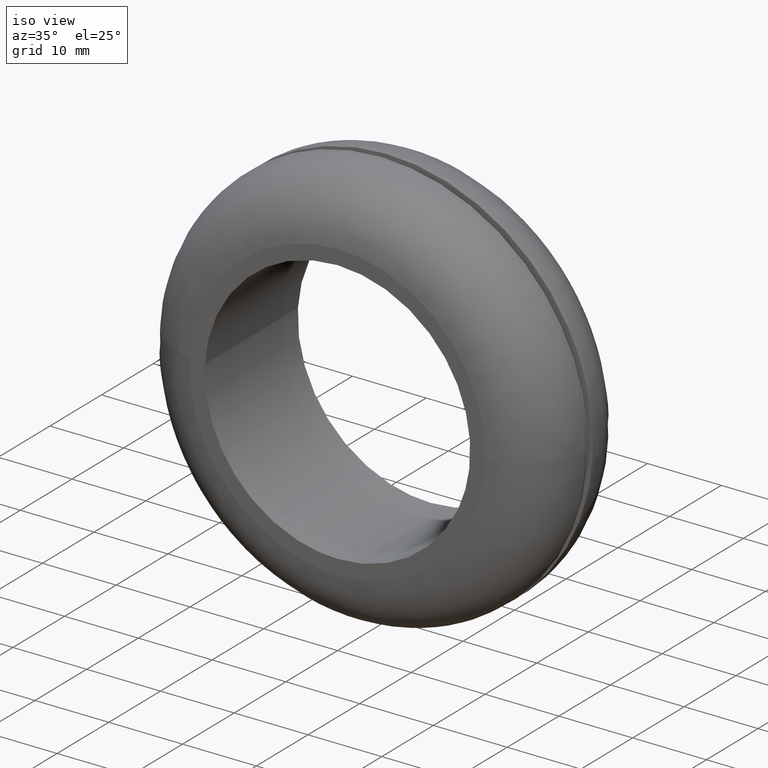
[diagram: clean part render]
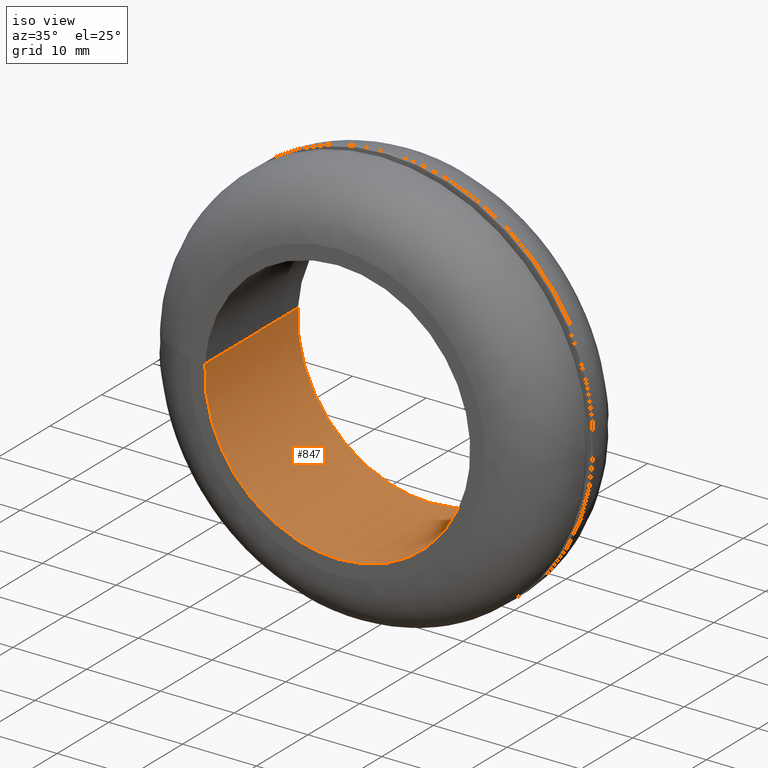
[diagram: same view with one face highlighted and labeled with its STEP entity id]
A machine part, iso view. The second image highlights one B-rep face of the part: STEP entity #847.
In plain terms, the highlighted face is a freeform B-spline surface patch.
Its self-contained STEP definition (entity closure, byte-faithful):
#684=CARTESIAN_POINT('',(17.874173591016429,18.000000000000089,-2.124598418028458));
#685=VERTEX_POINT('',#684);
#703=CARTESIAN_POINT('',(17.874173565500872,-5.770390E-015,-2.124598632691822));
#704=VERTEX_POINT('',#703);
#705=CARTESIAN_POINT('',(17.874173591016429,18.000000000000089,-2.124598418028458));
#706=CARTESIAN_POINT('',(17.874173565500872,-5.770390E-015,-2.124598632691822));
#707=QUASI_UNIFORM_CURVE('',1,(#705,#706),.UNSPECIFIED.,.F.,.U.);
#708=EDGE_CURVE('',#685,#704,#707,.T.);
#727=CARTESIAN_POINT('',(-17.966427366884538,-2.652419E-015,1.098857438522586));
#728=VERTEX_POINT('',#727);
#742=CARTESIAN_POINT('',(-17.966427379012210,17.999999999999918,1.098857240230970));
#743=VERTEX_POINT('',#742);
#744=CARTESIAN_POINT('',(-17.966427379012210,17.999999999999918,1.098857240230970));
#745=CARTESIAN_POINT('',(-17.966427366884538,-2.652419E-015,1.098857438522586));
#746=QUASI_UNIFORM_CURVE('',1,(#744,#745),.UNSPECIFIED.,.F.,.U.);
#747=EDGE_CURVE('',#743,#728,#746,.T.);
#765=CARTESIAN_POINT('',(-17.966426371593599,18.449999999999999,1.098873711627425));
#766=CARTESIAN_POINT('',(-19.065300083221029,18.450000000000010,-16.867552659966176));
#767=CARTESIAN_POINT('',(-1.098873711627426,18.449999999999999,-17.966426371593599));
#768=CARTESIAN_POINT('',(15.867782835111013,18.449999999999999,-19.004151541185493));
#769=CARTESIAN_POINT('',(17.874171474545992,18.450000000000003,-2.124616223821653));
#770=CARTESIAN_POINT('',(-17.966426371593599,-0.461250000000007,1.098873711627425));
#771=CARTESIAN_POINT('',(-19.065300083221029,-0.461250000000007,-16.867552659966176));
#772=CARTESIAN_POINT('',(-1.098873711627426,-0.461250000000007,-17.966426371593599));
#773=CARTESIAN_POINT('',(15.867782835111013,-0.461250000000007,-19.004151541185493));
#774=CARTESIAN_POINT('',(17.874171474545992,-0.461250000000007,-2.124616223821653));
#782=(BOUNDED_SURFACE()B_SPLINE_SURFACE(2,1,((#765,#770),(#766,#771),(#767,#772),(#768,#773),(#769,#774)),.UNSPECIFIED.,.F.,.F.,.U.)B_SPLINE_SURFACE_WITH_KNOTS((3,2,3),(2,2),(0.0,29.823376490862831,58.453817922091147),(0.0,18.911250000000010),.UNSPECIFIED.)GEOMETRIC_REPRESENTATION_ITEM()RATIONAL_B_SPLINE_SURFACE(((1.0,1.0),(0.707106781186548,0.707106781186548),(1.0,1.0),(0.718822509939086,0.718822509939086),(0.977505800795127,0.977505800795127)))REPRESENTATION_ITEM('')SURFACE());
#783=CARTESIAN_POINT('',(0.0,18.0,-18.0));
#784=VERTEX_POINT('',#783);
#785=CARTESIAN_POINT('',(0.0,18.0,-18.0));
#786=CARTESIAN_POINT('',(15.987157505225790,18.000000000000007,-18.000000000000007));
#787=CARTESIAN_POINT('',(17.874173591016433,18.000000000000089,-2.124598418028459));
#795=(BOUNDED_CURVE()B_SPLINE_CURVE(2,(#785,#786,#787),.UNSPECIFIED.,.F.,.U.)B_SPLINE_CURVE_WITH_KNOTS((3,3),(0.0,0.229562641872376),.UNSPECIFIED.)CURVE()GEOMETRIC_REPRESENTATION_ITEM()RATIONAL_B_SPLINE_CURVE((1.0,0.731050635610720,0.956027084174235))REPRESENTATION_ITEM(''));
#796=EDGE_CURVE('',#784,#685,#795,.T.);
#797=ORIENTED_EDGE('',*,*,#796,.F.);
#798=CARTESIAN_POINT('',(-17.966427379012213,17.999999999999918,1.098857240230970));
#799=CARTESIAN_POINT('',(-18.000000000000004,18.000000000000004,0.549941480584856));
#800=CARTESIAN_POINT('',(-18.0,18.0,-4.286122E-016));
#801=CARTESIAN_POINT('',(-18.000000000000007,18.000000000000007,-18.000000000000007));
#802=CARTESIAN_POINT('',(0.0,18.0,-18.0));
#810=(BOUNDED_CURVE()B_SPLINE_CURVE(2,(#798,#799,#800,#801,#802),.UNSPECIFIED.,.F.,.U.)B_SPLINE_CURVE_WITH_KNOTS((3,2,3),(0.739333120430740,0.750000000000000,1.0),.UNSPECIFIED.)CURVE()GEOMETRIC_REPRESENTATION_ITEM()RATIONAL_B_SPLINE_CURVE((0.976072380702086,0.987502973233056,1.0,0.707106781186547,1.0))REPRESENTATION_ITEM(''));
#811=EDGE_CURVE('',#743,#784,#810,.T.);
#812=ORIENTED_EDGE('',*,*,#811,.F.);
#813=ORIENTED_EDGE('',*,*,#747,.T.);
#814=CARTESIAN_POINT('',(0.0,-3.306437E-015,-18.0));
#815=VERTEX_POINT('',#814);
#816=CARTESIAN_POINT('',(-17.966427366884538,-2.652419E-015,1.098857438522586));
#817=CARTESIAN_POINT('',(-18.000000000000007,-3.306437E-015,0.549941580008645));
#818=CARTESIAN_POINT('',(-18.0,-3.306437E-015,-4.286122E-016));
#819=CARTESIAN_POINT('',(-18.000000000000007,-3.306437E-015,-18.000000000000007));
#820=CARTESIAN_POINT('',(0.0,-3.306437E-015,-18.0));
#828=(BOUNDED_CURVE()B_SPLINE_CURVE(2,(#816,#817,#818,#819,#820),.UNSPECIFIED.,.F.,.U.)B_SPLINE_CURVE_WITH_KNOTS((3,2,3),(0.739333118526377,0.750000000000000,1.0),.UNSPECIFIED.)CURVE()GEOMETRIC_REPRESENTATION_ITEM()RATIONAL_B_SPLINE_CURVE((0.976072376620669,0.987502971001956,1.0,0.707106781186547,1.0))REPRESENTATION_ITEM(''));
#829=EDGE_CURVE('',#728,#815,#828,.T.);
#830=ORIENTED_EDGE('',*,*,#829,.T.);
#831=CARTESIAN_POINT('',(0.0,-3.306437E-015,-18.0));
#832=CARTESIAN_POINT('',(15.987157311873327,-3.306437E-015,-17.999999999999996));
#833=CARTESIAN_POINT('',(17.874173565500875,-5.770390E-015,-2.124598632691822));
#841=(BOUNDED_CURVE()B_SPLINE_CURVE(2,(#831,#832,#833),.UNSPECIFIED.,.F.,.U.)B_SPLINE_CURVE_WITH_KNOTS((3,3),(0.0,0.229562639842698),.UNSPECIFIED.)CURVE()GEOMETRIC_REPRESENTATION_ITEM()RATIONAL_B_SPLINE_CURVE((1.0,0.731050637988636,0.956027080195977))REPRESENTATION_ITEM(''));
#842=EDGE_CURVE('',#815,#704,#841,.T.);
#843=ORIENTED_EDGE('',*,*,#842,.T.);
#844=ORIENTED_EDGE('',*,*,#708,.F.);
#845=EDGE_LOOP('',(#797,#812,#813,#830,#843,#844));
#846=FACE_OUTER_BOUND('',#845,.T.);
#847=ADVANCED_FACE('',(#846),#782,.F.);